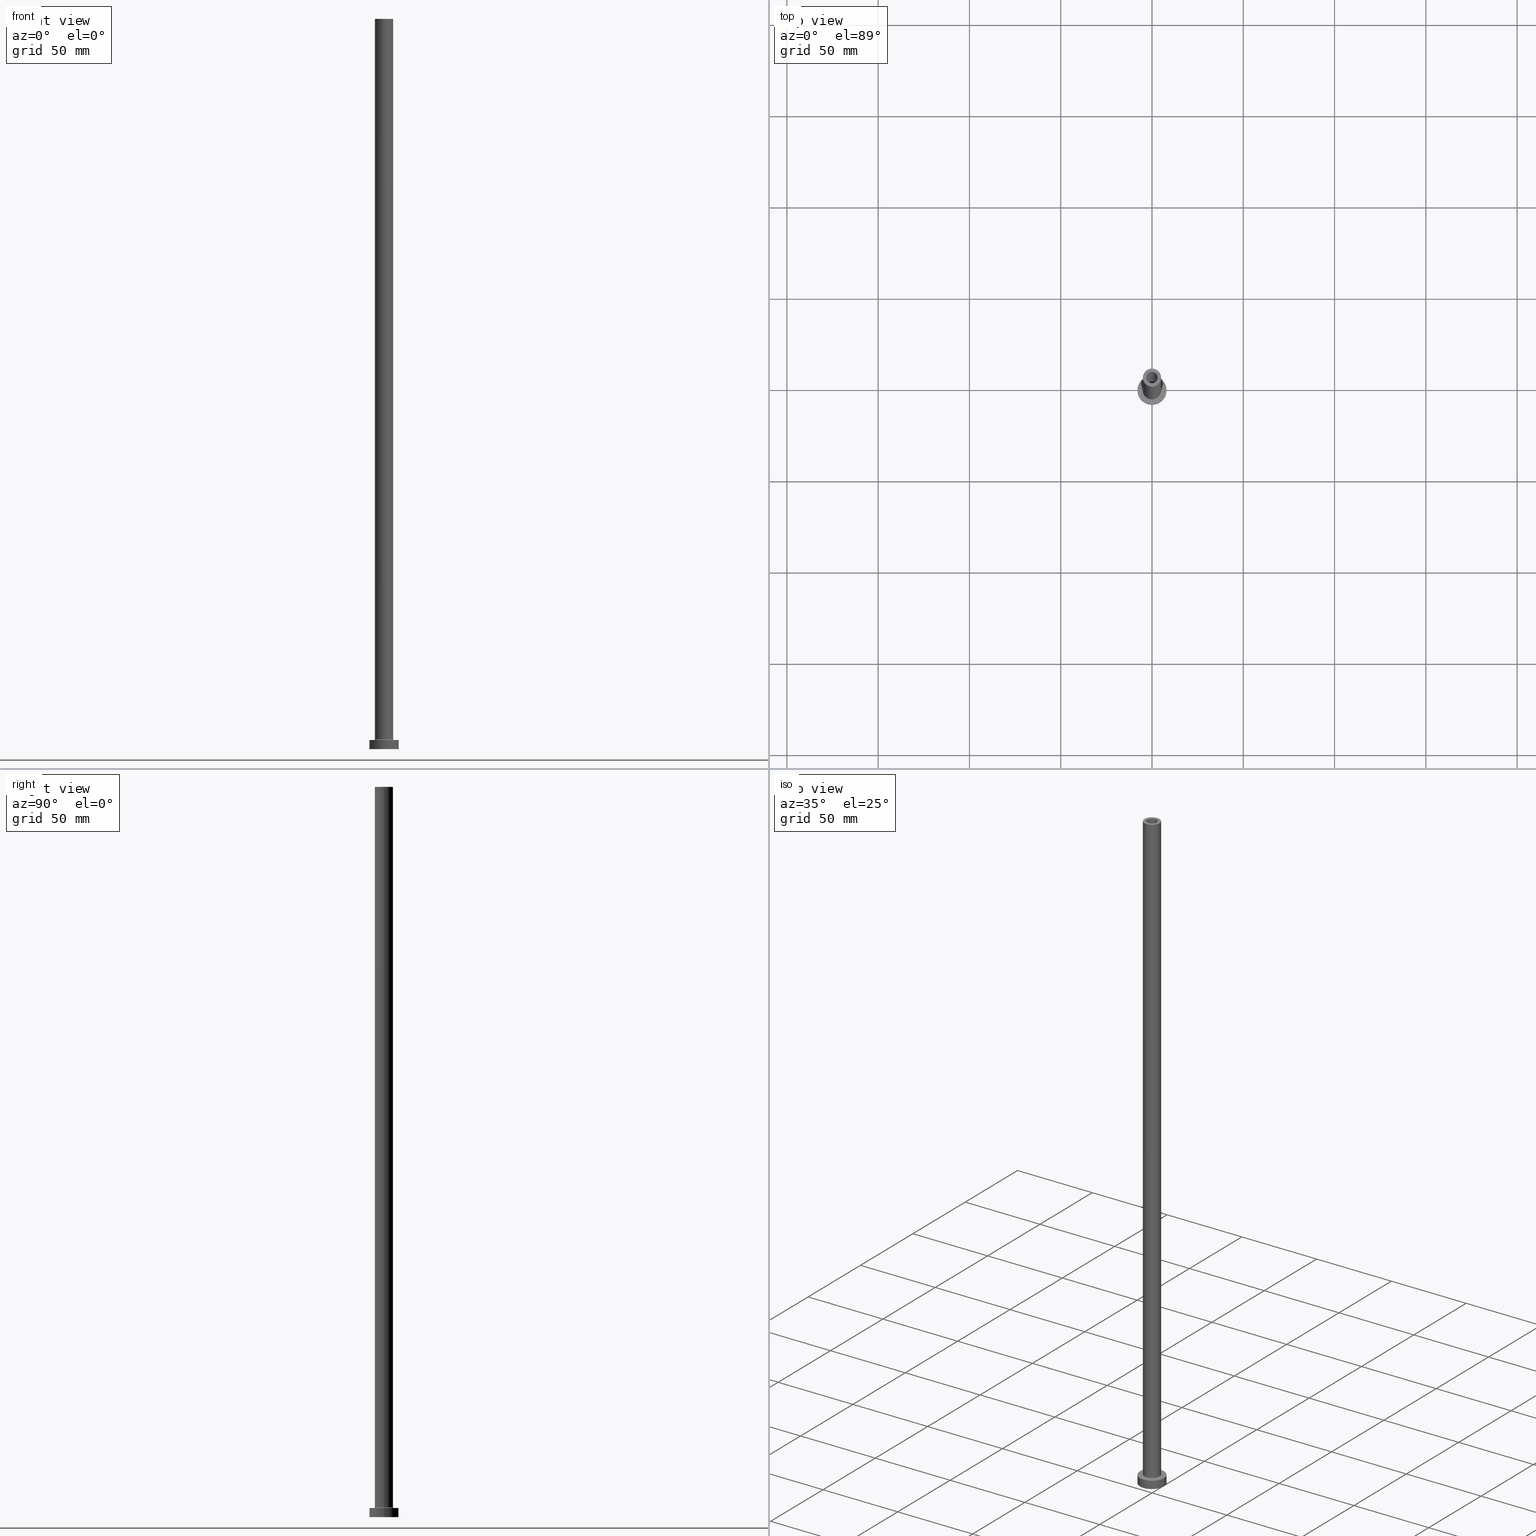
[diagram: canonical four-view strip — front | top / right | iso, engineering-drawing reading convention]
A machine part, canonical four-view strip (front | top / right | iso — engineering-drawing reading convention). The complete STEP part file that produces these views, byte-faithful:
ISO-10303-21;
HEADER;
FILE_DESCRIPTION (( 'STEP AP203' ),
    '1' );
FILE_NAME ('cd25.STEP',
    '2023-02-13T14:30:35',
    ( '' ),
    ( '' ),
    'SwSTEP 2.0',
    'SolidWorks 2019',
    '' );
FILE_SCHEMA (( 'CONFIG_CONTROL_DESIGN' ));
ENDSEC;

DATA;
#1 = CIRCLE ( 'NONE', #421, 5.000000000000000000 ) ;
#2 = FACE_OUTER_BOUND ( 'NONE', #447, .T. ) ;
#3 = VERTEX_POINT ( 'NONE', #284 ) ;
#4 = CC_DESIGN_APPROVAL ( #375, ( #371 ) ) ;
#5 = CARTESIAN_POINT ( 'NONE',  ( 0.000000000000000000, 0.000000000000000000, 355.0000000000000568 ) ) ;
#6 = EDGE_CURVE ( 'NONE', #406, #55, #182, .T. ) ;
#7 = ORIENTED_EDGE ( 'NONE', *, *, #402, .T. ) ;
#8 = CARTESIAN_POINT ( 'NONE',  ( 5.500000000000000000, 0.000000000000000000, 5.000000000000002665 ) ) ;
#9 = ORIENTED_EDGE ( 'NONE', *, *, #136, .F. ) ;
#10 = CIRCLE ( 'NONE', #456, 5.500000000000000000 ) ;
#11 = CARTESIAN_POINT ( 'NONE',  ( -3.100000000000000089, 0.000000000000000000, 400.0000000000000000 ) ) ;
#12 = ORGANIZATION ( 'NEUR�EN�', 'NEUR�EN�', '' ) ;
#13 = ORIENTED_EDGE ( 'NONE', *, *, #123, .F. ) ;
#14 = UNCERTAINTY_MEASURE_WITH_UNIT (LENGTH_MEASURE( 1.000000000000000082E-05 ), #441, 'distance_accuracy_value', 'NONE');
#15 = CARTESIAN_POINT ( 'NONE',  ( 0.000000000000000000, 0.000000000000000000, 5.500000000000005329 ) ) ;
#16 = EDGE_LOOP ( 'NONE', ( #239, #62 ) ) ;
#17 = DIRECTION ( 'NONE',  ( -0.000000000000000000, -0.000000000000000000, -1.000000000000000000 ) ) ;
#18 = AXIS2_PLACEMENT_3D ( 'NONE', #75, #326, #457 ) ;
#19 = ORIENTED_EDGE ( 'NONE', *, *, #79, .F. ) ;
#20 = CIRCLE ( 'NONE', #359, 8.000000000000000000 ) ;
#21 = CARTESIAN_POINT ( 'NONE',  ( 0.000000000000000000, 0.000000000000000000, 400.0000000000000000 ) ) ;
#22 = ADVANCED_FACE ( 'NONE', ( #255 ), #248, .T. ) ;
#23 = ORIENTED_EDGE ( 'NONE', *, *, #435, .T. ) ;
#24 = APPROVAL_STATUS ( 'not_yet_approved' ) ;
#25 = VERTEX_POINT ( 'NONE', #183 ) ;
#26 = ADVANCED_FACE ( 'NONE', ( #143, #385 ), #31, .T. ) ;
#27 = PERSON_AND_ORGANIZATION_ROLE ( 'classification_officer' ) ;
#28 = CIRCLE ( 'NONE', #203, 8.000000000000000000 ) ;
#29 = DIRECTION ( 'NONE',  ( 0.000000000000000000, 0.000000000000000000, 1.000000000000000000 ) ) ;
#30 = AXIS2_PLACEMENT_3D ( 'NONE', #271, #444, #54 ) ;
#31 = PLANE ( 'NONE',  #427 ) ;
#32 = SHAPE_DEFINITION_REPRESENTATION ( #399, #185 ) ;
#33 = DIRECTION ( 'NONE',  ( 0.000000000000000000, 0.000000000000000000, 1.000000000000000000 ) ) ;
#34 = CALENDAR_DATE ( 2023, 13, 2 ) ;
#35 = CARTESIAN_POINT ( 'NONE',  ( 0.000000000000000000, 0.000000000000000000, 5.000000000000000000 ) ) ;
#36 = AXIS2_PLACEMENT_3D ( 'NONE', #265, #433, #84 ) ;
#37 = CIRCLE ( 'NONE', #206, 8.000000000000000000 ) ;
#38 = CARTESIAN_POINT ( 'NONE',  ( 0.000000000000000000, 0.000000000000000000, 400.0000000000000000 ) ) ;
#39 = PLANE ( 'NONE',  #291 ) ;
#40 = EDGE_CURVE ( 'NONE', #442, #341, #44, .T. ) ;
#41 = EDGE_CURVE ( 'NONE', #406, #138, #436, .T. ) ;
#42 = DIRECTION ( 'NONE',  ( -1.000000000000000000, 0.000000000000000000, 0.000000000000000000 ) ) ;
#43 = ORIENTED_EDGE ( 'NONE', *, *, #6, .F. ) ;
#44 = CIRCLE ( 'NONE', #105, 3.100000000000000089 ) ;
#45 = DIRECTION ( 'NONE',  ( 1.000000000000000000, 0.000000000000000000, -0.000000000000000000 ) ) ;
#46 = ORIENTED_EDGE ( 'NONE', *, *, #435, .F. ) ;
#47 = LOCAL_TIME ( 15, 30, 35.00000000000000000, #168 ) ;
#48 = PRODUCT_RELATED_PRODUCT_CATEGORY ( 'detail', '', ( #429 ) ) ;
#49 = DIRECTION ( 'NONE',  ( 0.000000000000000000, 0.000000000000000000, 1.000000000000000000 ) ) ;
#50 = CIRCLE ( 'NONE', #317, 3.250000000000000444 ) ;
#51 = CARTESIAN_POINT ( 'NONE',  ( 0.000000000000000000, 0.000000000000000000, 0.000000000000000000 ) ) ;
#52 = ORIENTED_EDGE ( 'NONE', *, *, #125, .T. ) ;
#53 = CC_DESIGN_APPROVAL ( #88, ( #230 ) ) ;
#54 = DIRECTION ( 'NONE',  ( 1.000000000000000000, 0.000000000000000000, 0.000000000000000000 ) ) ;
#55 = VERTEX_POINT ( 'NONE', #350 ) ;
#56 = ADVANCED_FACE ( 'NONE', ( #426 ), #112, .T. ) ;
#57 = CARTESIAN_POINT ( 'NONE',  ( 3.100000000000000089, 3.796405077356793932E-16, 355.0000000000000568 ) ) ;
#58 = ORIENTED_EDGE ( 'NONE', *, *, #107, .T. ) ;
#59 = CC_DESIGN_PERSON_AND_ORGANIZATION_ASSIGNMENT ( #292, #247, ( #429 ) ) ;
#60 = CARTESIAN_POINT ( 'NONE',  ( 0.000000000000000000, 0.000000000000000000, 0.000000000000000000 ) ) ;
#61 = CIRCLE ( 'NONE', #18, 0.5000000000000004441 ) ;
#62 = ORIENTED_EDGE ( 'NONE', *, *, #253, .T. ) ;
#63 = CIRCLE ( 'NONE', #30, 5.500000000000000000 ) ;
#64 = CARTESIAN_POINT ( 'NONE',  ( 0.000000000000000000, 0.000000000000000000, 5.000000000000000000 ) ) ;
#65 = ORIENTED_EDGE ( 'NONE', *, *, #146, .T. ) ;
#66 = EDGE_CURVE ( 'NONE', #442, #374, #418, .T. ) ;
#67 = PERSON_AND_ORGANIZATION_ROLE ( 'creator' ) ;
#68 = DIRECTION ( 'NONE',  ( 0.000000000000000000, 0.000000000000000000, 1.000000000000000000 ) ) ;
#69 = APPROVAL_ROLE ( '' ) ;
#70 = AXIS2_PLACEMENT_3D ( 'NONE', #293, #33, #180 ) ;
#71 = CARTESIAN_POINT ( 'NONE',  ( 3.250000000000000444, 3.980102097228898231E-16, 355.0000000000000568 ) ) ;
#72 = ADVANCED_FACE ( 'NONE', ( #355, #319 ), #218, .F. ) ;
#73 = MECHANICAL_CONTEXT ( 'NONE', #237, 'mechanical' ) ;
#74 = DIRECTION ( 'NONE',  ( -1.000000000000000000, 0.000000000000000000, 0.000000000000000000 ) ) ;
#75 = CARTESIAN_POINT ( 'NONE',  ( 5.500000000000000000, 0.000000000000000000, 5.500000000000005329 ) ) ;
#76 = DIRECTION ( 'NONE',  ( 0.000000000000000000, 0.000000000000000000, 1.000000000000000000 ) ) ;
#77 = AXIS2_PLACEMENT_3D ( 'NONE', #21, #158, #132 ) ;
#78 = CARTESIAN_POINT ( 'NONE',  ( -3.250000000000000444, 0.000000000000000000, 0.000000000000000000 ) ) ;
#79 = EDGE_CURVE ( 'NONE', #205, #365, #252, .T. ) ;
#80 = LINE ( 'NONE', #366, #101 ) ;
#81 = CARTESIAN_POINT ( 'NONE',  ( 0.000000000000000000, 0.000000000000000000, 364.1923881554251352 ) ) ;
#82 = EDGE_CURVE ( 'NONE', #280, #202, #257, .T. ) ;
#83 = AXIS2_PLACEMENT_3D ( 'NONE', #35, #104, #174 ) ;
#84 = DIRECTION ( 'NONE',  ( -1.000000000000000000, 1.224646799147351482E-16, 0.000000000000000000 ) ) ;
#85 = VERTEX_POINT ( 'NONE', #148 ) ;
#86 = AXIS2_PLACEMENT_3D ( 'NONE', #137, #377, #411 ) ;
#87 = CARTESIAN_POINT ( 'NONE',  ( -8.000000000000000000, 0.000000000000000000, 5.000000000000000000 ) ) ;
#88 = APPROVAL ( #354, 'NEUR�EN�' ) ;
#89 = DIRECTION ( 'NONE',  ( 0.000000000000000000, 0.000000000000000000, 1.000000000000000000 ) ) ;
#90 = ORIENTED_EDGE ( 'NONE', *, *, #110, .T. ) ;
#91 = AXIS2_PLACEMENT_3D ( 'NONE', #155, #328, #361 ) ;
#92 = CARTESIAN_POINT ( 'NONE',  ( 0.000000000000000000, 0.000000000000000000, 355.0000000000000568 ) ) ;
#93 = VERTEX_POINT ( 'NONE', #71 ) ;
#94 =( GEOMETRIC_REPRESENTATION_CONTEXT ( 3 ) GLOBAL_UNCERTAINTY_ASSIGNED_CONTEXT ( ( #14 ) ) GLOBAL_UNIT_ASSIGNED_CONTEXT ( ( #441, #275, #440 ) ) REPRESENTATION_CONTEXT ( 'NONE', 'WORKASPACE' ) );
#95 = CARTESIAN_POINT ( 'NONE',  ( -3.250000000000000444, 0.000000000000000000, 355.0000000000000568 ) ) ;
#96 = ORIENTED_EDGE ( 'NONE', *, *, #222, .T. ) ;
#97 = EDGE_CURVE ( 'NONE', #55, #25, #28, .T. ) ;
#98 = CYLINDRICAL_SURFACE ( 'NONE', #424, 8.000000000000000000 ) ;
#99 = ORIENTED_EDGE ( 'NONE', *, *, #376, .T. ) ;
#100 = DIRECTION ( 'NONE',  ( 0.000000000000000000, 0.000000000000000000, 1.000000000000000000 ) ) ;
#101 = VECTOR ( 'NONE', #330, 1000.000000000000000 ) ;
#102 = EDGE_LOOP ( 'NONE', ( #412, #342, #416, #19 ) ) ;
#103 = ORIENTED_EDGE ( 'NONE', *, *, #82, .F. ) ;
#104 = DIRECTION ( 'NONE',  ( -0.000000000000000000, -0.000000000000000000, -1.000000000000000000 ) ) ;
#105 = AXIS2_PLACEMENT_3D ( 'NONE', #38, #68, #390 ) ;
#106 = DIRECTION ( 'NONE',  ( 1.000000000000000000, 0.000000000000000000, 0.000000000000000000 ) ) ;
#107 = EDGE_CURVE ( 'NONE', #3, #133, #10, .T. ) ;
#108 = APPROVAL_DATE_TIME ( #349, #335 ) ;
#109 = CARTESIAN_POINT ( 'NONE',  ( 0.000000000000000000, 0.000000000000000000, 400.0000000000000000 ) ) ;
#110 = EDGE_CURVE ( 'NONE', #365, #272, #212, .T. ) ;
#111 = DATE_TIME_ROLE ( 'classification_date' ) ;
#112 = CYLINDRICAL_SURFACE ( 'NONE', #83, 8.000000000000000000 ) ;
#113 = EDGE_CURVE ( 'NONE', #374, #332, #266, .T. ) ;
#114 = DIRECTION ( 'NONE',  ( 1.000000000000000000, 0.000000000000000000, 0.000000000000000000 ) ) ;
#115 = CIRCLE ( 'NONE', #36, 0.5000000000000004441 ) ;
#116 = APPROVAL_PERSON_ORGANIZATION ( #450, #375, #69 ) ;
#117 = PLANE ( 'NONE',  #223 ) ;
#118 = DIRECTION ( 'NONE',  ( 0.000000000000000000, 0.000000000000000000, 1.000000000000000000 ) ) ;
#119 = EDGE_CURVE ( 'NONE', #272, #133, #61, .T. ) ;
#120 = VERTEX_POINT ( 'NONE', #364 ) ;
#121 = DIRECTION ( 'NONE',  ( -1.000000000000000000, 0.000000000000000000, 0.000000000000000000 ) ) ;
#122 = ORIENTED_EDGE ( 'NONE', *, *, #253, .F. ) ;
#123 = EDGE_CURVE ( 'NONE', #341, #442, #140, .T. ) ;
#124 = DIRECTION ( 'NONE',  ( 0.000000000000000000, 0.000000000000000000, -1.000000000000000000 ) ) ;
#125 = EDGE_CURVE ( 'NONE', #280, #93, #50, .T. ) ;
#126 = DIRECTION ( 'NONE',  ( 0.000000000000000000, 0.000000000000000000, 1.000000000000000000 ) ) ;
#127 = EDGE_CURVE ( 'NONE', #365, #3, #115, .T. ) ;
#128 = CARTESIAN_POINT ( 'NONE',  ( 0.000000000000000000, 0.000000000000000000, 355.0000000000000568 ) ) ;
#129 = ADVANCED_FACE ( 'NONE', ( #188 ), #194, .F. ) ;
#130 = ORIENTED_EDGE ( 'NONE', *, *, #146, .F. ) ;
#131 = TOROIDAL_SURFACE ( 'NONE', #220, 5.500000000000000000, 0.5000000000000000000 ) ;
#132 = DIRECTION ( 'NONE',  ( -1.000000000000000000, 0.000000000000000000, 0.000000000000000000 ) ) ;
#133 = VERTEX_POINT ( 'NONE', #8 ) ;
#134 = DIRECTION ( 'NONE',  ( 1.000000000000000000, 0.000000000000000000, 0.000000000000000000 ) ) ;
#135 = EDGE_LOOP ( 'NONE', ( #299, #445 ) ) ;
#136 = EDGE_CURVE ( 'NONE', #205, #85, #310, .T. ) ;
#137 = CARTESIAN_POINT ( 'NONE',  ( 0.000000000000000000, 0.000000000000000000, 400.0000000000000000 ) ) ;
#138 = VERTEX_POINT ( 'NONE', #87 ) ;
#139 = EDGE_CURVE ( 'NONE', #85, #272, #80, .T. ) ;
#140 = CIRCLE ( 'NONE', #274, 3.100000000000000089 ) ;
#141 = PERSON_AND_ORGANIZATION ( #425, #12 ) ;
#142 = VECTOR ( 'NONE', #177, 1000.000000000000000 ) ;
#143 = FACE_BOUND ( 'NONE', #262, .T. ) ;
#144 = CARTESIAN_POINT ( 'NONE',  ( -5.000000000000000000, 0.000000000000000000, 400.0000000000000000 ) ) ;
#145 = COORDINATED_UNIVERSAL_TIME_OFFSET ( 1, 0, .AHEAD. ) ;
#146 = EDGE_CURVE ( 'NONE', #120, #202, #243, .T. ) ;
#147 = DIRECTION ( 'NONE',  ( -0.000000000000000000, -0.000000000000000000, -1.000000000000000000 ) ) ;
#148 = CARTESIAN_POINT ( 'NONE',  ( 5.000000000000000000, 6.123233995736765296E-16, 400.0000000000000000 ) ) ;
#149 = PERSON_AND_ORGANIZATION ( #425, #12 ) ;
#150 = ORIENTED_EDGE ( 'NONE', *, *, #40, .F. ) ;
#151 = FACE_BOUND ( 'NONE', #327, .T. ) ;
#152 = DIRECTION ( 'NONE',  ( 0.000000000000000000, 0.000000000000000000, -1.000000000000000000 ) ) ;
#153 = DIRECTION ( 'NONE',  ( 0.000000000000000000, 0.000000000000000000, -1.000000000000000000 ) ) ;
#154 = DIRECTION ( 'NONE',  ( 0.000000000000000000, 0.000000000000000000, -1.000000000000000000 ) ) ;
#155 = CARTESIAN_POINT ( 'NONE',  ( 0.000000000000000000, 0.000000000000000000, 0.000000000000000000 ) ) ;
#156 = CARTESIAN_POINT ( 'NONE',  ( -8.000000000000000000, 0.000000000000000000, 5.000000000000000000 ) ) ;
#157 = ADVANCED_FACE ( 'NONE', ( #362 ), #233, .F. ) ;
#158 = DIRECTION ( 'NONE',  ( -0.000000000000000000, -0.000000000000000000, -1.000000000000000000 ) ) ;
#159 = APPLICATION_CONTEXT ( 'configuration controlled 3d designs of mechanical parts and assemblies' ) ;
#160 = EDGE_LOOP ( 'NONE', ( #52, #316, #65, #103 ) ) ;
#161 = DIRECTION ( 'NONE',  ( 1.000000000000000000, 0.000000000000000000, 0.000000000000000000 ) ) ;
#162 = ORIENTED_EDGE ( 'NONE', *, *, #119, .F. ) ;
#163 = AXIS2_PLACEMENT_3D ( 'NONE', #420, #76, #106 ) ;
#164 = FACE_OUTER_BOUND ( 'NONE', #345, .T. ) ;
#165 = ORIENTED_EDGE ( 'NONE', *, *, #41, .F. ) ;
#166 = CARTESIAN_POINT ( 'NONE',  ( 5.000000000000000000, 6.123233995736765296E-16, 5.500000000000005329 ) ) ;
#167 = EDGE_LOOP ( 'NONE', ( #309, #449 ) ) ;
#168 = COORDINATED_UNIVERSAL_TIME_OFFSET ( 1, 0, .AHEAD. ) ;
#169 = EDGE_LOOP ( 'NONE', ( #46, #130 ) ) ;
#170 = CC_DESIGN_DATE_AND_TIME_ASSIGNMENT ( #351, #256, ( #288 ) ) ;
#171 = CLOSED_SHELL ( 'NONE', ( #129, #184, #389, #22, #56, #268, #200, #72, #258, #26, #193, #157, #219, #297 ) ) ;
#172 = AXIS2_PLACEMENT_3D ( 'NONE', #81, #153, #259 ) ;
#173 = PERSON_AND_ORGANIZATION_ROLE ( 'creator' ) ;
#174 = DIRECTION ( 'NONE',  ( -1.000000000000000000, 0.000000000000000000, 0.000000000000000000 ) ) ;
#175 = CIRCLE ( 'NONE', #438, 3.100000000000000089 ) ;
#176 = COORDINATED_UNIVERSAL_TIME_OFFSET ( 1, 0, .AHEAD. ) ;
#177 = DIRECTION ( 'NONE',  ( -0.000000000000000000, -0.000000000000000000, -1.000000000000000000 ) ) ;
#178 = SECURITY_CLASSIFICATION_LEVEL ( 'unclassified' ) ;
#179 = EDGE_CURVE ( 'NONE', #93, #120, #186, .T. ) ;
#180 = DIRECTION ( 'NONE',  ( 1.000000000000000000, 0.000000000000000000, 0.000000000000000000 ) ) ;
#181 = EDGE_CURVE ( 'NONE', #85, #205, #1, .T. ) ;
#182 = LINE ( 'NONE', #391, #367 ) ;
#183 = CARTESIAN_POINT ( 'NONE',  ( -8.000000000000000000, 0.000000000000000000, 0.000000000000000000 ) ) ;
#184 = ADVANCED_FACE ( 'NONE', ( #459 ), #226, .F. ) ;
#185 = ADVANCED_BREP_SHAPE_REPRESENTATION ( 'cd25', ( #281, #196 ), #94 ) ;
#186 = LINE ( 'NONE', #192, #296 ) ;
#187 = EDGE_CURVE ( 'NONE', #341, #332, #304, .T. ) ;
#188 = FACE_OUTER_BOUND ( 'NONE', #461, .T. ) ;
#189 = EDGE_LOOP ( 'NONE', ( #339, #408 ) ) ;
#190 = CARTESIAN_POINT ( 'NONE',  ( 0.000000000000000000, 0.000000000000000000, 400.0000000000000000 ) ) ;
#191 = ORIENTED_EDGE ( 'NONE', *, *, #79, .T. ) ;
#192 = CARTESIAN_POINT ( 'NONE',  ( 3.250000000000000444, 3.980102097228898231E-16, 364.1923881554251352 ) ) ;
#193 = ADVANCED_FACE ( 'NONE', ( #437 ), #131, .F. ) ;
#194 = CYLINDRICAL_SURFACE ( 'NONE', #324, 3.100000000000000089 ) ;
#195 = DIRECTION ( 'NONE',  ( 1.000000000000000000, 0.000000000000000000, 0.000000000000000000 ) ) ;
#196 = AXIS2_PLACEMENT_3D ( 'NONE', #254, #422, #346 ) ;
#197 = ORIENTED_EDGE ( 'NONE', *, *, #119, .T. ) ;
#198 = DIRECTION ( 'NONE',  ( 0.000000000000000000, 0.000000000000000000, 1.000000000000000000 ) ) ;
#199 = ORIENTED_EDGE ( 'NONE', *, *, #107, .F. ) ;
#200 = ADVANCED_FACE ( 'NONE', ( #151, #2 ), #39, .T. ) ;
#201 = LINE ( 'NONE', #156, #431 ) ;
#202 = VERTEX_POINT ( 'NONE', #78 ) ;
#203 = AXIS2_PLACEMENT_3D ( 'NONE', #352, #213, #321 ) ;
#204 = DIRECTION ( 'NONE',  ( 1.000000000000000000, 0.000000000000000000, 0.000000000000000000 ) ) ;
#205 = VERTEX_POINT ( 'NONE', #225 ) ;
#206 = AXIS2_PLACEMENT_3D ( 'NONE', #60, #311, #204 ) ;
#207 = APPROVAL_DATE_TIME ( #414, #88 ) ;
#208 = EDGE_LOOP ( 'NONE', ( #401, #235, #378, #23 ) ) ;
#209 = PERSON_AND_ORGANIZATION_ROLE ( 'design_supplier' ) ;
#210 = DIRECTION ( 'NONE',  ( 1.000000000000000000, 0.000000000000000000, 0.000000000000000000 ) ) ;
#211 = AXIS2_PLACEMENT_3D ( 'NONE', #323, #388, #74 ) ;
#212 = CIRCLE ( 'NONE', #163, 5.000000000000000000 ) ;
#213 = DIRECTION ( 'NONE',  ( 0.000000000000000000, 0.000000000000000000, 1.000000000000000000 ) ) ;
#214 = LOCAL_TIME ( 15, 30, 35.00000000000000000, #176 ) ;
#215 = APPROVAL_ROLE ( '' ) ;
#216 = DIRECTION ( 'NONE',  ( 0.000000000000000000, 0.000000000000000000, 1.000000000000000000 ) ) ;
#217 = APPROVAL_ROLE ( '' ) ;
#218 = PLANE ( 'NONE',  #336 ) ;
#219 = ADVANCED_FACE ( 'NONE', ( #460, #430 ), #117, .F. ) ;
#220 = AXIS2_PLACEMENT_3D ( 'NONE', #227, #301, #392 ) ;
#221 = DIRECTION ( 'NONE',  ( 1.000000000000000000, 0.000000000000000000, -0.000000000000000000 ) ) ;
#222 = EDGE_CURVE ( 'NONE', #133, #3, #63, .T. ) ;
#223 = AXIS2_PLACEMENT_3D ( 'NONE', #5, #261, #302 ) ;
#224 = CC_DESIGN_PERSON_AND_ORGANIZATION_ASSIGNMENT ( #386, #27, ( #371 ) ) ;
#225 = CARTESIAN_POINT ( 'NONE',  ( -5.000000000000000000, 0.000000000000000000, 400.0000000000000000 ) ) ;
#226 = CYLINDRICAL_SURFACE ( 'NONE', #329, 3.250000000000000444 ) ;
#227 = CARTESIAN_POINT ( 'NONE',  ( 0.000000000000000000, 0.000000000000000000, 5.500000000000005329 ) ) ;
#228 = VECTOR ( 'NONE', #331, 1000.000000000000000 ) ;
#229 = ORIENTED_EDGE ( 'NONE', *, *, #187, .T. ) ;
#230 = PRODUCT_DEFINITION_FORMATION_WITH_SPECIFIED_SOURCE ( 'LIBOVOLN�', '', #429, .NOT_KNOWN. ) ;
#231 = DIRECTION ( 'NONE',  ( 1.000000000000000000, 0.000000000000000000, 0.000000000000000000 ) ) ;
#232 = ORIENTED_EDGE ( 'NONE', *, *, #439, .F. ) ;
#233 = CYLINDRICAL_SURFACE ( 'NONE', #172, 3.250000000000000444 ) ;
#234 = CARTESIAN_POINT ( 'NONE',  ( -3.100000000000000089, 0.000000000000000000, 355.0000000000000568 ) ) ;
#235 = ORIENTED_EDGE ( 'NONE', *, *, #282, .T. ) ;
#236 = VECTOR ( 'NONE', #287, 1000.000000000000000 ) ;
#237 = APPLICATION_CONTEXT ( 'configuration controlled 3d designs of mechanical parts and assemblies' ) ;
#238 = FACE_OUTER_BOUND ( 'NONE', #397, .T. ) ;
#239 = ORIENTED_EDGE ( 'NONE', *, *, #113, .T. ) ;
#240 = EDGE_LOOP ( 'NONE', ( #43, #232, #7, #99 ) ) ;
#241 = CARTESIAN_POINT ( 'NONE',  ( -5.000000000000000000, 0.000000000000000000, 5.500000000000005329 ) ) ;
#242 = ORIENTED_EDGE ( 'NONE', *, *, #187, .F. ) ;
#243 = CIRCLE ( 'NONE', #91, 3.250000000000000444 ) ;
#244 = DIRECTION ( 'NONE',  ( 1.000000000000000000, 0.000000000000000000, 0.000000000000000000 ) ) ;
#245 = ORIENTED_EDGE ( 'NONE', *, *, #113, .F. ) ;
#246 = AXIS2_PLACEMENT_3D ( 'NONE', #15, #89, #161 ) ;
#247 = PERSON_AND_ORGANIZATION_ROLE ( 'design_owner' ) ;
#248 = CYLINDRICAL_SURFACE ( 'NONE', #211, 5.000000000000000000 ) ;
#249 = APPROVAL_DATE_TIME ( #251, #375 ) ;
#250 = CARTESIAN_POINT ( 'NONE',  ( -3.250000000000000444, 0.000000000000000000, 364.1923881554251352 ) ) ;
#251 = DATE_AND_TIME ( #417, #214 ) ;
#252 = LINE ( 'NONE', #144, #142 ) ;
#253 = EDGE_CURVE ( 'NONE', #332, #374, #175, .T. ) ;
#254 = CARTESIAN_POINT ( 'NONE',  ( 0.000000000000000000, 0.000000000000000000, 0.000000000000000000 ) ) ;
#255 = FACE_OUTER_BOUND ( 'NONE', #102, .T. ) ;
#256 = DATE_TIME_ROLE ( 'creation_date' ) ;
#257 = LINE ( 'NONE', #250, #379 ) ;
#258 = ADVANCED_FACE ( 'NONE', ( #164 ), #404, .T. ) ;
#259 = DIRECTION ( 'NONE',  ( -1.000000000000000000, 0.000000000000000000, 0.000000000000000000 ) ) ;
#260 = APPROVAL_PERSON_ORGANIZATION ( #322, #88, #217 ) ;
#261 = DIRECTION ( 'NONE',  ( 0.000000000000000000, 0.000000000000000000, 1.000000000000000000 ) ) ;
#262 = EDGE_LOOP ( 'NONE', ( #150, #13 ) ) ;
#263 = DIRECTION ( 'NONE',  ( 0.000000000000000000, 0.000000000000000000, 1.000000000000000000 ) ) ;
#264 = ORIENTED_EDGE ( 'NONE', *, *, #40, .T. ) ;
#265 = CARTESIAN_POINT ( 'NONE',  ( -5.500000000000000000, 6.735557395310442023E-16, 5.500000000000005329 ) ) ;
#266 = CIRCLE ( 'NONE', #70, 3.100000000000000089 ) ;
#267 = ORIENTED_EDGE ( 'NONE', *, *, #110, .F. ) ;
#268 = ADVANCED_FACE ( 'NONE', ( #338 ), #98, .T. ) ;
#269 = CIRCLE ( 'NONE', #320, 3.250000000000000444 ) ;
#270 = CARTESIAN_POINT ( 'NONE',  ( 0.000000000000000000, 0.000000000000000000, 400.0000000000000000 ) ) ;
#271 = CARTESIAN_POINT ( 'NONE',  ( 0.000000000000000000, 0.000000000000000000, 5.000000000000000000 ) ) ;
#272 = VERTEX_POINT ( 'NONE', #166 ) ;
#273 = EDGE_LOOP ( 'NONE', ( #370, #443, #197, #199 ) ) ;
#274 = AXIS2_PLACEMENT_3D ( 'NONE', #190, #263, #396 ) ;
#275 =( NAMED_UNIT ( * ) PLANE_ANGLE_UNIT ( ) SI_UNIT ( $, .RADIAN. ) );
#276 = ORIENTED_EDGE ( 'NONE', *, *, #222, .F. ) ;
#277 = CARTESIAN_POINT ( 'NONE',  ( 0.000000000000000000, 0.000000000000000000, 5.000000000000000000 ) ) ;
#278 = ORIENTED_EDGE ( 'NONE', *, *, #402, .F. ) ;
#279 = CARTESIAN_POINT ( 'NONE',  ( 0.000000000000000000, 0.000000000000000000, 5.500000000000005329 ) ) ;
#280 = VERTEX_POINT ( 'NONE', #95 ) ;
#281 = MANIFOLD_SOLID_BREP ( 'Odebrat vysunut�m4', #171 ) ;
#282 = EDGE_CURVE ( 'NONE', #93, #280, #269, .T. ) ;
#283 = PERSON_AND_ORGANIZATION ( #425, #12 ) ;
#284 = CARTESIAN_POINT ( 'NONE',  ( -5.500000000000000000, 6.735557395310442023E-16, 5.000000000000002665 ) ) ;
#285 = APPROVAL_PERSON_ORGANIZATION ( #283, #335, #215 ) ;
#286 = APPROVAL_STATUS ( 'not_yet_approved' ) ;
#287 = DIRECTION ( 'NONE',  ( 0.000000000000000000, 0.000000000000000000, -1.000000000000000000 ) ) ;
#288 = PRODUCT_DEFINITION ( 'NEZN�M�', '', #230, #308 ) ;
#289 = CALENDAR_DATE ( 2023, 13, 2 ) ;
#290 = DIRECTION ( 'NONE',  ( 1.000000000000000000, 0.000000000000000000, 0.000000000000000000 ) ) ;
#291 = AXIS2_PLACEMENT_3D ( 'NONE', #432, #118, #45 ) ;
#292 = PERSON_AND_ORGANIZATION ( #425, #12 ) ;
#293 = CARTESIAN_POINT ( 'NONE',  ( 0.000000000000000000, 0.000000000000000000, 355.0000000000000568 ) ) ;
#294 = CARTESIAN_POINT ( 'NONE',  ( -3.100000000000000089, 0.000000000000000000, 400.0000000000000000 ) ) ;
#295 = CARTESIAN_POINT ( 'NONE',  ( 0.000000000000000000, 0.000000000000000000, 355.0000000000000568 ) ) ;
#296 = VECTOR ( 'NONE', #152, 1000.000000000000000 ) ;
#297 = ADVANCED_FACE ( 'NONE', ( #238 ), #372, .F. ) ;
#298 = DIRECTION ( 'NONE',  ( 0.000000000000000000, 0.000000000000000000, 1.000000000000000000 ) ) ;
#299 = ORIENTED_EDGE ( 'NONE', *, *, #125, .F. ) ;
#300 = AXIS2_PLACEMENT_3D ( 'NONE', #51, #380, #195 ) ;
#301 = DIRECTION ( 'NONE',  ( 0.000000000000000000, 0.000000000000000000, 1.000000000000000000 ) ) ;
#302 = DIRECTION ( 'NONE',  ( 1.000000000000000000, 0.000000000000000000, -0.000000000000000000 ) ) ;
#303 = ORIENTED_EDGE ( 'NONE', *, *, #66, .F. ) ;
#304 = LINE ( 'NONE', #360, #228 ) ;
#305 = TOROIDAL_SURFACE ( 'NONE', #393, 5.500000000000000000, 0.5000000000000000000 ) ;
#306 = DIRECTION ( 'NONE',  ( 1.000000000000000000, 0.000000000000000000, 0.000000000000000000 ) ) ;
#307 = ORIENTED_EDGE ( 'NONE', *, *, #127, .T. ) ;
#308 = DESIGN_CONTEXT ( 'detailed design', #159, 'design' ) ;
#309 = ORIENTED_EDGE ( 'NONE', *, *, #136, .T. ) ;
#310 = CIRCLE ( 'NONE', #369, 5.000000000000000000 ) ;
#311 = DIRECTION ( 'NONE',  ( 0.000000000000000000, 0.000000000000000000, 1.000000000000000000 ) ) ;
#312 = ORIENTED_EDGE ( 'NONE', *, *, #97, .T. ) ;
#313 = FACE_OUTER_BOUND ( 'NONE', #347, .T. ) ;
#314 = ORIENTED_EDGE ( 'NONE', *, *, #66, .T. ) ;
#315 = COORDINATED_UNIVERSAL_TIME_OFFSET ( 1, 0, .AHEAD. ) ;
#316 = ORIENTED_EDGE ( 'NONE', *, *, #179, .T. ) ;
#317 = AXIS2_PLACEMENT_3D ( 'NONE', #295, #298, #403 ) ;
#318 = CALENDAR_DATE ( 2023, 13, 2 ) ;
#319 = FACE_OUTER_BOUND ( 'NONE', #189, .T. ) ;
#320 = AXIS2_PLACEMENT_3D ( 'NONE', #128, #198, #343 ) ;
#321 = DIRECTION ( 'NONE',  ( 1.000000000000000000, 0.000000000000000000, 0.000000000000000000 ) ) ;
#322 = PERSON_AND_ORGANIZATION ( #425, #12 ) ;
#323 = CARTESIAN_POINT ( 'NONE',  ( 0.000000000000000000, 0.000000000000000000, 400.0000000000000000 ) ) ;
#324 = AXIS2_PLACEMENT_3D ( 'NONE', #428, #154, #121 ) ;
#325 = APPLICATION_PROTOCOL_DEFINITION ( 'international standard', 'config_control_design', 1994, #237 ) ;
#326 = DIRECTION ( 'NONE',  ( 0.000000000000000000, -1.000000000000000000, 0.000000000000000000 ) ) ;
#327 = EDGE_LOOP ( 'NONE', ( #96, #58 ) ) ;
#328 = DIRECTION ( 'NONE',  ( -0.000000000000000000, -0.000000000000000000, -1.000000000000000000 ) ) ;
#329 = AXIS2_PLACEMENT_3D ( 'NONE', #395, #124, #42 ) ;
#330 = DIRECTION ( 'NONE',  ( -0.000000000000000000, -0.000000000000000000, -1.000000000000000000 ) ) ;
#331 = DIRECTION ( 'NONE',  ( 0.000000000000000000, 0.000000000000000000, -1.000000000000000000 ) ) ;
#332 = VERTEX_POINT ( 'NONE', #57 ) ;
#333 = DIRECTION ( 'NONE',  ( 0.000000000000000000, 0.000000000000000000, 1.000000000000000000 ) ) ;
#334 = DIRECTION ( 'NONE',  ( 0.000000000000000000, 0.000000000000000000, 1.000000000000000000 ) ) ;
#335 = APPROVAL ( #24, 'NEUR�EN�' ) ;
#336 = AXIS2_PLACEMENT_3D ( 'NONE', #357, #455, #451 ) ;
#337 = CC_DESIGN_APPROVAL ( #335, ( #288 ) ) ;
#338 = FACE_OUTER_BOUND ( 'NONE', #240, .T. ) ;
#339 = ORIENTED_EDGE ( 'NONE', *, *, #376, .F. ) ;
#340 = CARTESIAN_POINT ( 'NONE',  ( 3.100000000000000089, 3.796405077356793932E-16, 400.0000000000000000 ) ) ;
#341 = VERTEX_POINT ( 'NONE', #340 ) ;
#342 = ORIENTED_EDGE ( 'NONE', *, *, #139, .T. ) ;
#343 = DIRECTION ( 'NONE',  ( 1.000000000000000000, 0.000000000000000000, 0.000000000000000000 ) ) ;
#344 = CC_DESIGN_SECURITY_CLASSIFICATION ( #371, ( #230 ) ) ;
#345 = EDGE_LOOP ( 'NONE', ( #434, #9, #191, #90 ) ) ;
#346 = DIRECTION ( 'NONE',  ( 1.000000000000000000, 0.000000000000000000, 0.000000000000000000 ) ) ;
#347 = EDGE_LOOP ( 'NONE', ( #267, #307, #276, #162 ) ) ;
#348 = EDGE_CURVE ( 'NONE', #272, #365, #415, .T. ) ;
#349 = DATE_AND_TIME ( #289, #353 ) ;
#350 = CARTESIAN_POINT ( 'NONE',  ( 8.000000000000000000, 9.797174393178825657E-16, 0.000000000000000000 ) ) ;
#351 = DATE_AND_TIME ( #419, #381 ) ;
#352 = CARTESIAN_POINT ( 'NONE',  ( 0.000000000000000000, 0.000000000000000000, 0.000000000000000000 ) ) ;
#353 = LOCAL_TIME ( 15, 30, 35.00000000000000000, #145 ) ;
#354 = APPROVAL_STATUS ( 'not_yet_approved' ) ;
#355 = FACE_BOUND ( 'NONE', #169, .T. ) ;
#356 = PERSON_AND_ORGANIZATION ( #425, #12 ) ;
#357 = CARTESIAN_POINT ( 'NONE',  ( 0.000000000000000000, 0.000000000000000000, 0.000000000000000000 ) ) ;
#358 = CARTESIAN_POINT ( 'NONE',  ( 0.000000000000000000, 0.000000000000000000, 5.000000000000000000 ) ) ;
#359 = AXIS2_PLACEMENT_3D ( 'NONE', #64, #334, #306 ) ;
#360 = CARTESIAN_POINT ( 'NONE',  ( 3.100000000000000089, 3.796405077356793932E-16, 400.0000000000000000 ) ) ;
#361 = DIRECTION ( 'NONE',  ( 1.000000000000000000, 0.000000000000000000, 0.000000000000000000 ) ) ;
#362 = FACE_OUTER_BOUND ( 'NONE', #208, .T. ) ;
#363 = ORIENTED_EDGE ( 'NONE', *, *, #439, .T. ) ;
#364 = CARTESIAN_POINT ( 'NONE',  ( 3.250000000000000444, 3.980102097228898231E-16, 0.000000000000000000 ) ) ;
#365 = VERTEX_POINT ( 'NONE', #241 ) ;
#366 = CARTESIAN_POINT ( 'NONE',  ( 5.000000000000000000, 6.123233995736765296E-16, 400.0000000000000000 ) ) ;
#367 = VECTOR ( 'NONE', #423, 1000.000000000000000 ) ;
#368 = DIRECTION ( 'NONE',  ( -0.000000000000000000, -0.000000000000000000, -1.000000000000000000 ) ) ;
#369 = AXIS2_PLACEMENT_3D ( 'NONE', #270, #49, #231 ) ;
#370 = ORIENTED_EDGE ( 'NONE', *, *, #127, .F. ) ;
#371 = SECURITY_CLASSIFICATION ( '', '', #178 ) ;
#372 = CYLINDRICAL_SURFACE ( 'NONE', #86, 3.100000000000000089 ) ;
#373 = ORIENTED_EDGE ( 'NONE', *, *, #123, .T. ) ;
#374 = VERTEX_POINT ( 'NONE', #234 ) ;
#375 = APPROVAL ( #286, 'NEUR�EN�' ) ;
#376 = EDGE_CURVE ( 'NONE', #25, #55, #37, .T. ) ;
#377 = DIRECTION ( 'NONE',  ( 0.000000000000000000, 0.000000000000000000, -1.000000000000000000 ) ) ;
#378 = ORIENTED_EDGE ( 'NONE', *, *, #82, .T. ) ;
#379 = VECTOR ( 'NONE', #387, 1000.000000000000000 ) ;
#380 = DIRECTION ( 'NONE',  ( -0.000000000000000000, -0.000000000000000000, -1.000000000000000000 ) ) ;
#381 = LOCAL_TIME ( 15, 30, 35.00000000000000000, #315 ) ;
#382 = EDGE_LOOP ( 'NONE', ( #165, #405, #312, #278 ) ) ;
#383 = CC_DESIGN_PERSON_AND_ORGANIZATION_ASSIGNMENT ( #356, #209, ( #230 ) ) ;
#384 = APPLICATION_PROTOCOL_DEFINITION ( 'international standard', 'config_control_design', 1994, #159 ) ;
#385 = FACE_OUTER_BOUND ( 'NONE', #167, .T. ) ;
#386 = PERSON_AND_ORGANIZATION ( #425, #12 ) ;
#387 = DIRECTION ( 'NONE',  ( 0.000000000000000000, 0.000000000000000000, -1.000000000000000000 ) ) ;
#388 = DIRECTION ( 'NONE',  ( -0.000000000000000000, -0.000000000000000000, -1.000000000000000000 ) ) ;
#389 = ADVANCED_FACE ( 'NONE', ( #313 ), #305, .F. ) ;
#390 = DIRECTION ( 'NONE',  ( 1.000000000000000000, 0.000000000000000000, 0.000000000000000000 ) ) ;
#391 = CARTESIAN_POINT ( 'NONE',  ( 8.000000000000000000, 9.797174393178825657E-16, 5.000000000000000000 ) ) ;
#392 = DIRECTION ( 'NONE',  ( 1.000000000000000000, 0.000000000000000000, 0.000000000000000000 ) ) ;
#393 = AXIS2_PLACEMENT_3D ( 'NONE', #279, #100, #244 ) ;
#394 = CC_DESIGN_DATE_AND_TIME_ASSIGNMENT ( #454, #111, ( #371 ) ) ;
#395 = CARTESIAN_POINT ( 'NONE',  ( 0.000000000000000000, 0.000000000000000000, 364.1923881554251352 ) ) ;
#396 = DIRECTION ( 'NONE',  ( 1.000000000000000000, 0.000000000000000000, 0.000000000000000000 ) ) ;
#397 = EDGE_LOOP ( 'NONE', ( #242, #373, #314, #122 ) ) ;
#398 = AXIS2_PLACEMENT_3D ( 'NONE', #358, #216, #210 ) ;
#399 = PRODUCT_DEFINITION_SHAPE ( 'NONE', 'NONE',  #288 ) ;
#400 = CARTESIAN_POINT ( 'NONE',  ( 0.000000000000000000, 0.000000000000000000, 400.0000000000000000 ) ) ;
#401 = ORIENTED_EDGE ( 'NONE', *, *, #179, .F. ) ;
#402 = EDGE_CURVE ( 'NONE', #138, #25, #201, .T. ) ;
#403 = DIRECTION ( 'NONE',  ( 1.000000000000000000, 0.000000000000000000, 0.000000000000000000 ) ) ;
#404 = CYLINDRICAL_SURFACE ( 'NONE', #77, 5.000000000000000000 ) ;
#405 = ORIENTED_EDGE ( 'NONE', *, *, #6, .T. ) ;
#406 = VERTEX_POINT ( 'NONE', #446 ) ;
#407 = LOCAL_TIME ( 15, 30, 35.00000000000000000, #448 ) ;
#408 = ORIENTED_EDGE ( 'NONE', *, *, #97, .F. ) ;
#409 = DIRECTION ( 'NONE',  ( -1.000000000000000000, 0.000000000000000000, 0.000000000000000000 ) ) ;
#410 = ORIENTED_EDGE ( 'NONE', *, *, #41, .T. ) ;
#411 = DIRECTION ( 'NONE',  ( -1.000000000000000000, 0.000000000000000000, 0.000000000000000000 ) ) ;
#412 = ORIENTED_EDGE ( 'NONE', *, *, #181, .F. ) ;
#413 = CC_DESIGN_PERSON_AND_ORGANIZATION_ASSIGNMENT ( #149, #67, ( #230 ) ) ;
#414 = DATE_AND_TIME ( #34, #47 ) ;
#415 = CIRCLE ( 'NONE', #246, 5.000000000000000000 ) ;
#416 = ORIENTED_EDGE ( 'NONE', *, *, #348, .T. ) ;
#417 = CALENDAR_DATE ( 2023, 13, 2 ) ;
#418 = LINE ( 'NONE', #294, #236 ) ;
#419 = CALENDAR_DATE ( 2023, 13, 2 ) ;
#420 = CARTESIAN_POINT ( 'NONE',  ( 0.000000000000000000, 0.000000000000000000, 5.500000000000005329 ) ) ;
#421 = AXIS2_PLACEMENT_3D ( 'NONE', #400, #333, #114 ) ;
#422 = DIRECTION ( 'NONE',  ( 0.000000000000000000, 0.000000000000000000, 1.000000000000000000 ) ) ;
#423 = DIRECTION ( 'NONE',  ( -0.000000000000000000, -0.000000000000000000, -1.000000000000000000 ) ) ;
#424 = AXIS2_PLACEMENT_3D ( 'NONE', #277, #17, #409 ) ;
#425 = PERSON ( 'NEUR�EN�', 'NEUR�EN�', 'NEUR�EN�', ('NEUR�EN�'), ('NEUR�EN�'), ('NEUR�EN�') ) ;
#426 = FACE_OUTER_BOUND ( 'NONE', #382, .T. ) ;
#427 = AXIS2_PLACEMENT_3D ( 'NONE', #109, #29, #221 ) ;
#428 = CARTESIAN_POINT ( 'NONE',  ( 0.000000000000000000, 0.000000000000000000, 400.0000000000000000 ) ) ;
#429 = PRODUCT ( 'cd25', 'cd25', '', ( #73 ) ) ;
#430 = FACE_OUTER_BOUND ( 'NONE', #135, .T. ) ;
#431 = VECTOR ( 'NONE', #368, 1000.000000000000000 ) ;
#432 = CARTESIAN_POINT ( 'NONE',  ( 0.000000000000000000, 0.000000000000000000, 5.000000000000000000 ) ) ;
#433 = DIRECTION ( 'NONE',  ( 1.224646799147353207E-16, 1.000000000000000000, -0.000000000000000000 ) ) ;
#434 = ORIENTED_EDGE ( 'NONE', *, *, #139, .F. ) ;
#435 = EDGE_CURVE ( 'NONE', #202, #120, #458, .T. ) ;
#436 = CIRCLE ( 'NONE', #398, 8.000000000000000000 ) ;
#437 = FACE_OUTER_BOUND ( 'NONE', #273, .T. ) ;
#438 = AXIS2_PLACEMENT_3D ( 'NONE', #92, #126, #134 ) ;
#439 = EDGE_CURVE ( 'NONE', #138, #406, #20, .T. ) ;
#440 =( NAMED_UNIT ( * ) SI_UNIT ( $, .STERADIAN. ) SOLID_ANGLE_UNIT ( ) );
#441 =( LENGTH_UNIT ( ) NAMED_UNIT ( * ) SI_UNIT ( .MILLI., .METRE. ) );
#442 = VERTEX_POINT ( 'NONE', #11 ) ;
#443 = ORIENTED_EDGE ( 'NONE', *, *, #348, .F. ) ;
#444 = DIRECTION ( 'NONE',  ( -0.000000000000000000, -0.000000000000000000, -1.000000000000000000 ) ) ;
#445 = ORIENTED_EDGE ( 'NONE', *, *, #282, .F. ) ;
#446 = CARTESIAN_POINT ( 'NONE',  ( 8.000000000000000000, 9.797174393178825657E-16, 5.000000000000000000 ) ) ;
#447 = EDGE_LOOP ( 'NONE', ( #363, #410 ) ) ;
#448 = COORDINATED_UNIVERSAL_TIME_OFFSET ( 1, 0, .AHEAD. ) ;
#449 = ORIENTED_EDGE ( 'NONE', *, *, #181, .T. ) ;
#450 = PERSON_AND_ORGANIZATION ( #425, #12 ) ;
#451 = DIRECTION ( 'NONE',  ( 1.000000000000000000, 0.000000000000000000, -0.000000000000000000 ) ) ;
#452 = CARTESIAN_POINT ( 'NONE',  ( 0.000000000000000000, 0.000000000000000000, 5.000000000000000000 ) ) ;
#453 = CC_DESIGN_PERSON_AND_ORGANIZATION_ASSIGNMENT ( #141, #173, ( #288 ) ) ;
#454 = DATE_AND_TIME ( #318, #407 ) ;
#455 = DIRECTION ( 'NONE',  ( 0.000000000000000000, 0.000000000000000000, 1.000000000000000000 ) ) ;
#456 = AXIS2_PLACEMENT_3D ( 'NONE', #452, #147, #290 ) ;
#457 = DIRECTION ( 'NONE',  ( 0.000000000000000000, 0.000000000000000000, -1.000000000000000000 ) ) ;
#458 = CIRCLE ( 'NONE', #300, 3.250000000000000444 ) ;
#459 = FACE_OUTER_BOUND ( 'NONE', #160, .T. ) ;
#460 = FACE_BOUND ( 'NONE', #16, .T. ) ;
#461 = EDGE_LOOP ( 'NONE', ( #264, #229, #245, #303 ) ) ;
ENDSEC;
END-ISO-10303-21;
